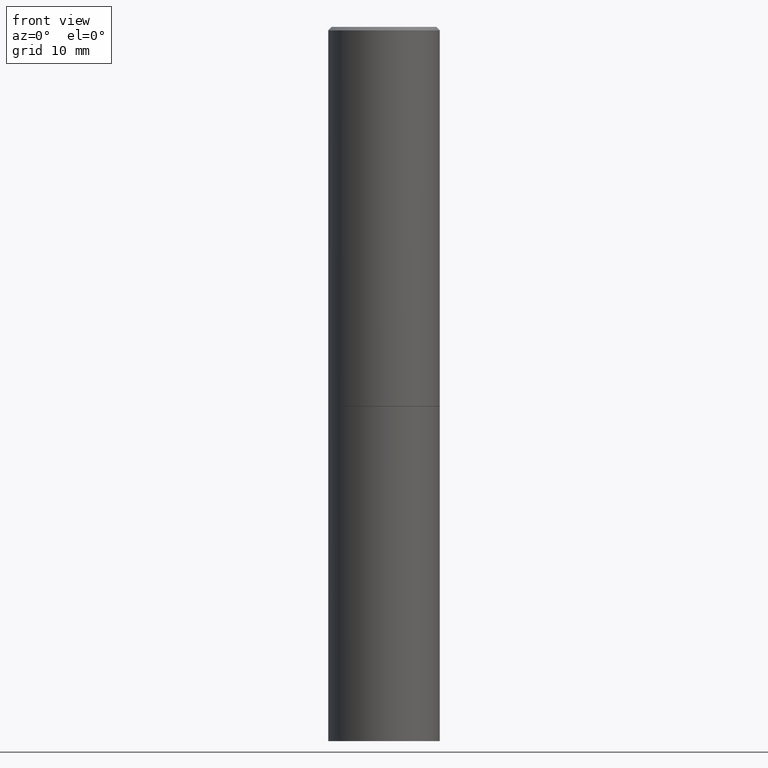
[diagram: clean part render]
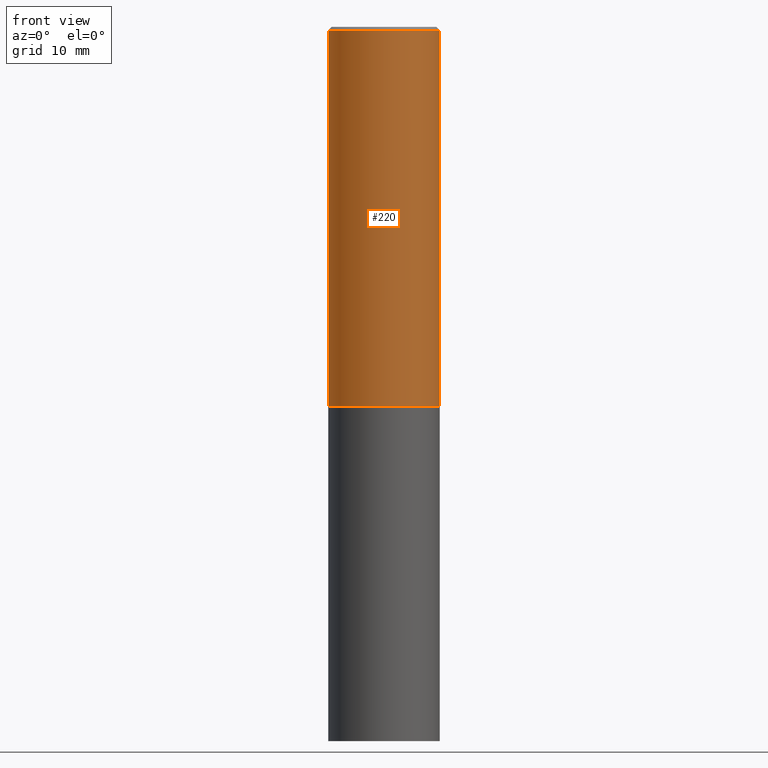
[diagram: same view with one face highlighted and labeled with its STEP entity id]
A machine part, front view. The second image highlights one B-rep face of the part: STEP entity #220.
In plain terms, the highlighted cylindrical surface (partial cylindrical patch) has radius 7.9375 mm, axis along (-0, 0, 1).
Its self-contained STEP definition (entity closure, byte-faithful):
#30 = DIRECTION ( 'NONE',  ( -2.445468806185136597E-29, 3.491481338843145583E-15, 1.000000000000000000 ) ) ;
#31 = CARTESIAN_POINT ( 'NONE',  ( 5.194175744337229665E-29, -7.415906363702840616E-15, -2.123999999999999666 ) ) ;
#32 = DIRECTION ( 'NONE',  ( -2.445468806185136877E-29, 3.491481338843145188E-15, 1.000000000000000000 ) ) ;
#55 = DIRECTION ( 'NONE',  ( -2.445468806185136597E-29, 3.491481338843145583E-15, 1.000000000000000000 ) ) ;
#58 = LINE ( 'NONE', #191, #115 ) ;
#62 = VERTEX_POINT ( 'NONE', #353 ) ;
#75 = DIRECTION ( 'NONE',  ( 1.000000000000000000, -6.982962677686265133E-15, 0.000000000000000000 ) ) ;
#95 = ORIENTED_EDGE ( 'NONE', *, *, #358, .T. ) ;
#107 = AXIS2_PLACEMENT_3D ( 'NONE', #222, #55, #338 ) ;
#109 = FACE_OUTER_BOUND ( 'NONE', #114, .T. ) ;
#114 = EDGE_LOOP ( 'NONE', ( #346, #95, #316, #260 ) ) ;
#115 = VECTOR ( 'NONE', #32, 39.37007874015748143 ) ;
#122 = AXIS2_PLACEMENT_3D ( 'NONE', #313, #30, #75 ) ;
#136 = CARTESIAN_POINT ( 'NONE',  ( -0.3124999999999998890, 2.220446049250312292E-15, -1.537167215704657391E-29 ) ) ;
#140 = VERTEX_POINT ( 'NONE', #188 ) ;
#162 = DIRECTION ( 'NONE',  ( 1.000000000000000000, -6.982962677686265133E-15, 0.000000000000000000 ) ) ;
#164 = CYLINDRICAL_SURFACE ( 'NONE', #107, 0.3124999999999998890 ) ;
#188 = CARTESIAN_POINT ( 'NONE',  ( 0.3125000000000000000, -9.598082200479797386E-15, -2.123999999999999666 ) ) ;
#191 = CARTESIAN_POINT ( 'NONE',  ( 0.3124999999999998890, -2.182175836776957558E-15, 1.523805242436229235E-29 ) ) ;
#195 = CARTESIAN_POINT ( 'NONE',  ( 0.3124999999999998335, -2.213735251080465334E-15, -0.02000000000000007674 ) ) ;
#216 = DIRECTION ( 'NONE',  ( -2.445468806185136597E-29, 3.491481338843145583E-15, 1.000000000000000000 ) ) ;
#219 = LINE ( 'NONE', #136, #247 ) ;
#220 = ADVANCED_FACE ( 'NONE', ( #109 ), #164, .T. ) ;
#222 = CARTESIAN_POINT ( 'NONE',  ( 0.000000000000000000, 0.000000000000000000, 0.000000000000000000 ) ) ;
#225 = EDGE_CURVE ( 'NONE', #297, #263, #279, .T. ) ;
#237 = EDGE_CURVE ( 'NONE', #140, #263, #58, .T. ) ;
#247 = VECTOR ( 'NONE', #277, 39.37007874015748143 ) ;
#259 = CIRCLE ( 'NONE', #266, 0.3125000000000000000 ) ;
#260 = ORIENTED_EDGE ( 'NONE', *, *, #225, .F. ) ;
#263 = VERTEX_POINT ( 'NONE', #195 ) ;
#266 = AXIS2_PLACEMENT_3D ( 'NONE', #31, #216, #162 ) ;
#277 = DIRECTION ( 'NONE',  ( -2.445468806185136877E-29, 3.491481338843145188E-15, 1.000000000000000000 ) ) ;
#279 = CIRCLE ( 'NONE', #122, 0.3124999999999998335 ) ;
#281 = EDGE_CURVE ( 'NONE', #62, #297, #219, .T. ) ;
#297 = VERTEX_POINT ( 'NONE', #352 ) ;
#313 = CARTESIAN_POINT ( 'NONE',  ( 4.890937612370292426E-31, -6.982962677686317493E-17, -0.02000000000000007674 ) ) ;
#316 = ORIENTED_EDGE ( 'NONE', *, *, #237, .T. ) ;
#338 = DIRECTION ( 'NONE',  ( 1.000000000000000000, -6.982962677686266711E-15, 4.876176775795935232E-29 ) ) ;
#346 = ORIENTED_EDGE ( 'NONE', *, *, #281, .F. ) ;
#352 = CARTESIAN_POINT ( 'NONE',  ( -0.3124999999999998335, 2.112346210000093866E-15, -0.02000000000000007674 ) ) ;
#353 = CARTESIAN_POINT ( 'NONE',  ( -0.3125000000000000000, -1.522421945989535918E-15, -2.123999999999999666 ) ) ;
#358 = EDGE_CURVE ( 'NONE', #62, #140, #259, .T. ) ;